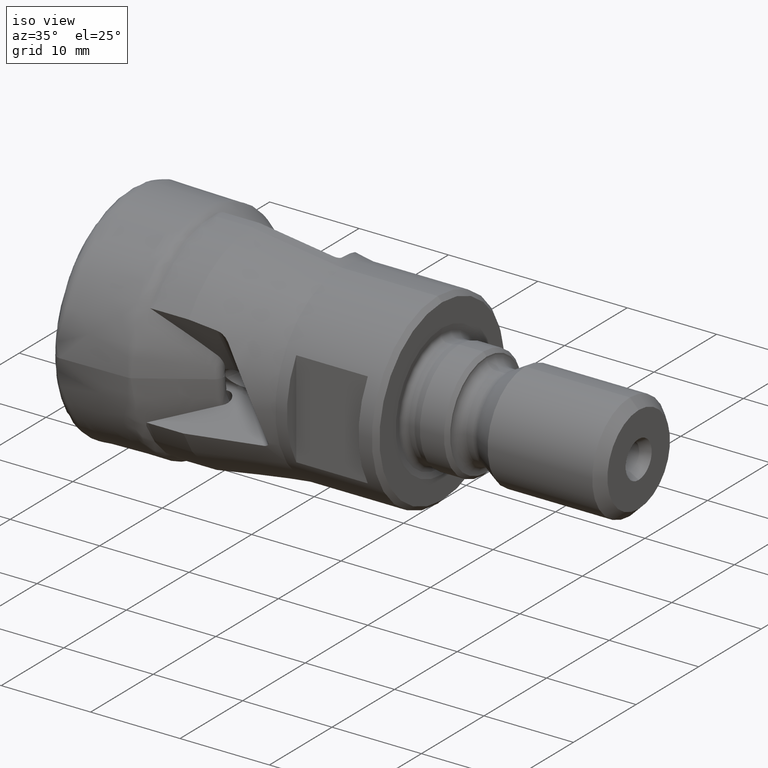
[diagram: clean part render]
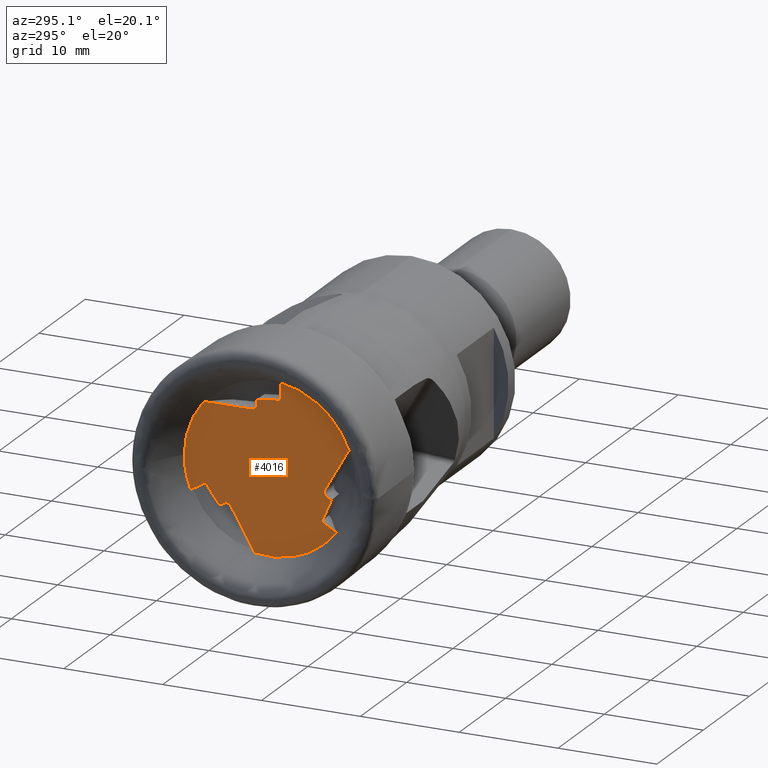
[diagram: tour spotlight — one face highlighted and labeled with its STEP entity id]
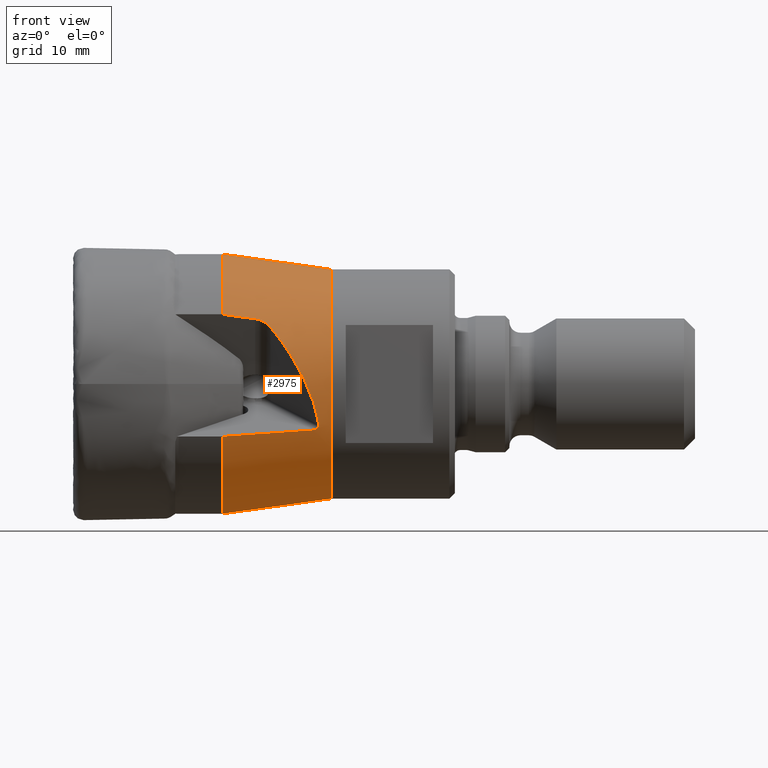
[diagram: tour spotlight — one face highlighted and labeled with its STEP entity id]
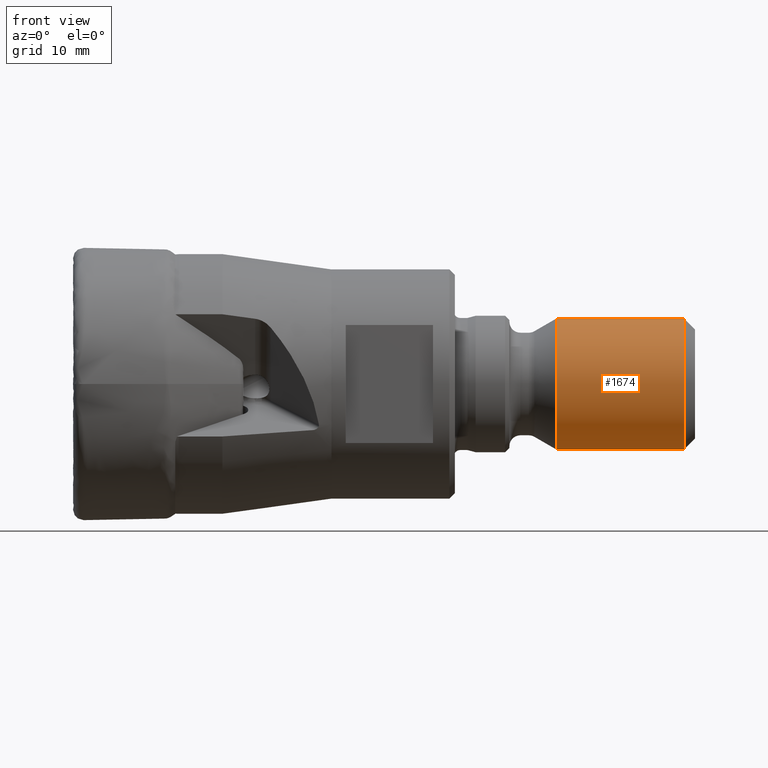
[diagram: tour spotlight — one face highlighted and labeled with its STEP entity id]
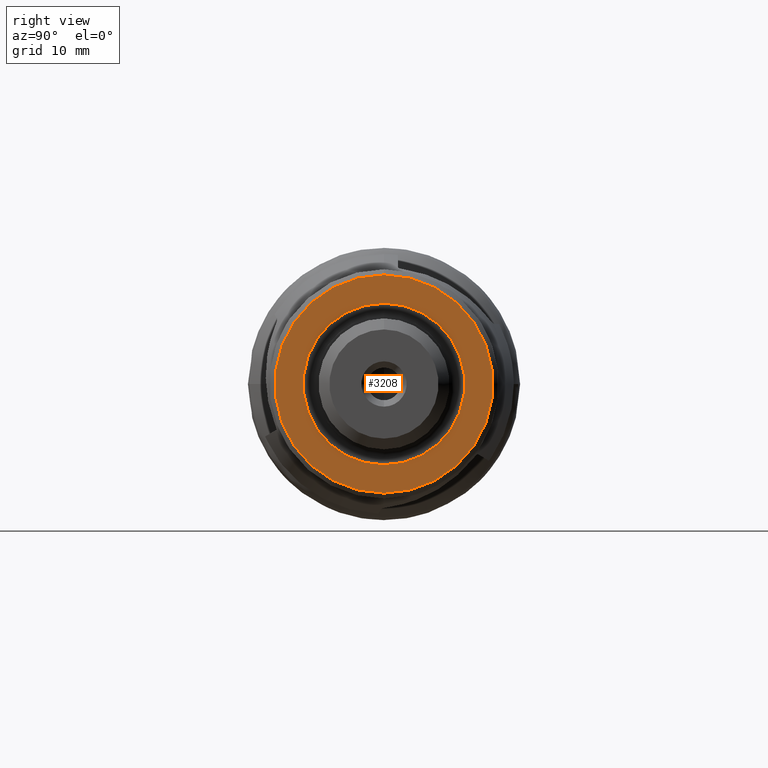
[diagram: tour spotlight — one face highlighted and labeled with its STEP entity id]
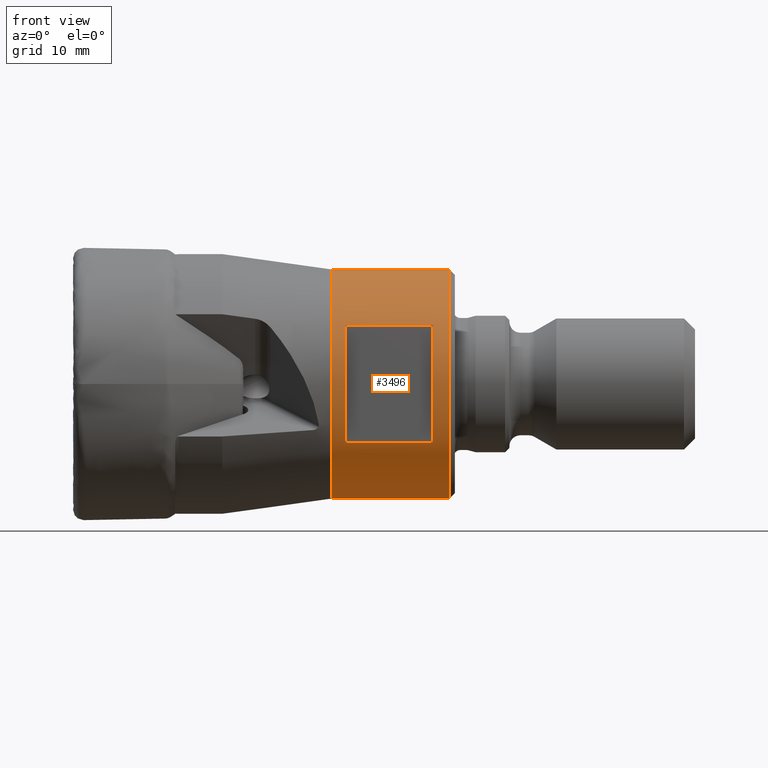
[diagram: tour spotlight — one face highlighted and labeled with its STEP entity id]
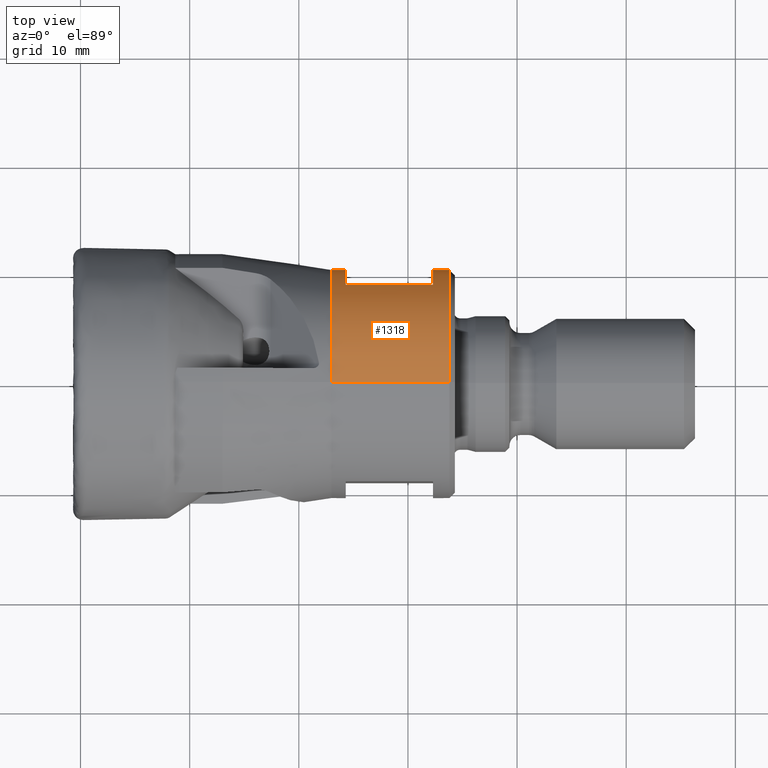
[diagram: tour spotlight — one face highlighted and labeled with its STEP entity id]
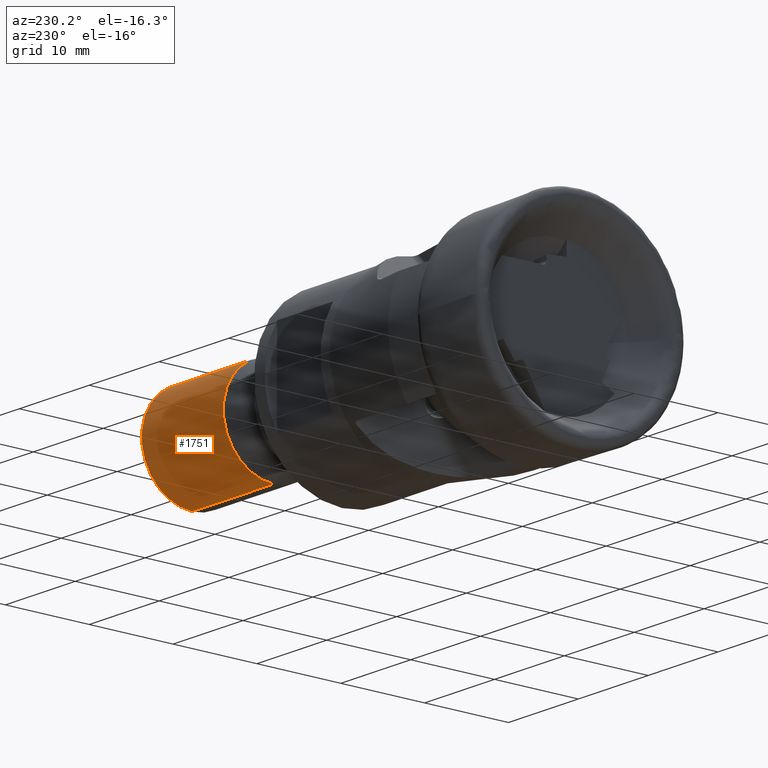
[diagram: tour spotlight — one face highlighted and labeled with its STEP entity id]
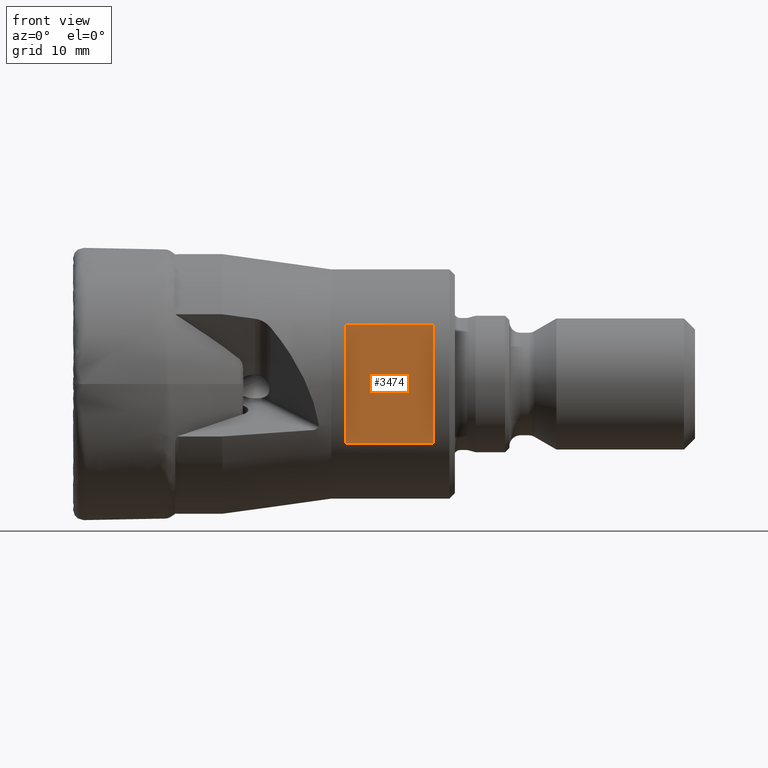
[diagram: tour spotlight — one face highlighted and labeled with its STEP entity id]
A machine part: a face-by-face anatomy tour. The part has 140 B-rep faces; the first image is the clean iso view, then the 8 largest visible faces are spotlighted one at a time (largest first), each with its STEP entity span.

Face 1 — auxiliary view, entity #4016. In plain terms, the highlighted planar face has unit normal (1, 0, 0).
Definition (entity closure, byte-faithful):
#15 = CARTESIAN_POINT ( 'NONE',  ( 2.999999999999999100, 0.0000000000000000000, 0.0000000000000000000 ) ) ;
#16 = CARTESIAN_POINT ( 'NONE',  ( 2.999999999999999100, 7.906625000000070200, 3.271627469146613200 ) ) ;
#51 = VECTOR ( 'NONE', #5285, 999.9999999999998900 ) ;
#122 = CARTESIAN_POINT ( 'NONE',  ( 2.999999999999997300, -6.292015533411229100, -2.154680172834768200 ) ) ;
#178 = VECTOR ( 'NONE', #284, 1000.000000000000000 ) ;
#197 = ORIENTED_EDGE ( 'NONE', *, *, #930, .T. ) ;
#230 = ORIENTED_EDGE ( 'NONE', *, *, #5463, .T. ) ;
#245 = LINE ( 'NONE', #1128, #3138 ) ;
#265 = LINE ( 'NONE', #4113, #1706 ) ;
#281 = CARTESIAN_POINT ( 'NONE',  ( 2.999999999999999100, 0.0000000000000000000, 0.0000000000000000000 ) ) ;
#284 = DIRECTION ( 'NONE',  ( -0.0000000000000000000, 0.8660254037844432600, 0.4999999999999919500 ) ) ;
#356 = CARTESIAN_POINT ( 'NONE',  ( 2.999999999999999100, 4.556152422706615500, -4.108512516844102800 ) ) ;
#416 = AXIS2_PLACEMENT_3D ( 'NONE', #281, #3370, #2029 ) ;
#417 = CARTESIAN_POINT ( 'NONE',  ( 2.999999999999999100, 9.795500000000000500, 6.759818246068590500 ) ) ;
#423 = VERTEX_POINT ( 'NONE', #4491 ) ;
#478 = CARTESIAN_POINT ( 'NONE',  ( 2.999999999999999100, 0.0000000000000000000, 0.0000000000000000000 ) ) ;
#500 = DIRECTION ( 'NONE',  ( 0.0000000000000000000, -0.5000000000000040000, -0.8660254037844363800 ) ) ;
#570 = AXIS2_PLACEMENT_3D ( 'NONE', #2195, #5281, #4405 ) ;
#610 = DIRECTION ( 'NONE',  ( 1.000000000000000000, 0.0000000000000000000, 0.0000000000000000000 ) ) ;
#641 = EDGE_CURVE ( 'NONE', #4559, #1741, #2387, .T. ) ;
#642 = CARTESIAN_POINT ( 'NONE',  ( 2.999999999999998200, -6.819930683116739400, -5.230753418736706600 ) ) ;
#748 = CARTESIAN_POINT ( 'NONE',  ( 2.999999999999997300, 5.012015533411188000, -4.371705206523013300 ) ) ;
#760 = DIRECTION ( 'NONE',  ( 0.0000000000000000000, -0.4999999999999920100, 0.8660254037844432600 ) ) ;
#768 = ORIENTED_EDGE ( 'NONE', *, *, #3234, .F. ) ;
#780 = CARTESIAN_POINT ( 'NONE',  ( 2.999999999999999100, -3.405299326061078000, -7.621485044419431500 ) ) ;
#804 = VERTEX_POINT ( 'NONE', #356 ) ;
#872 = FACE_OUTER_BOUND ( 'NONE', #2787, .T. ) ;
#873 = CARTESIAN_POINT ( 'NONE',  ( 3.000000000000000000, -1.119999999999999900, 6.759818246068589600 ) ) ;
#883 = ORIENTED_EDGE ( 'NONE', *, *, #1639, .T. ) ;
#889 = CARTESIAN_POINT ( 'NONE',  ( 2.999999999999999100, 0.0000000000000000000, 0.0000000000000000000 ) ) ;
#930 = EDGE_CURVE ( 'Kante59', #804, #3996, #4638, .T. ) ;
#958 = LINE ( 'NONE', #417, #4493 ) ;
#982 = CARTESIAN_POINT ( 'NONE',  ( 2.999999999999999100, 4.306152422706612800, -4.541525218736322400 ) ) ;
#1047 = DIRECTION ( 'NONE',  ( 0.0000000000000000000, -1.000000000000000000, 0.0000000000000000000 ) ) ;
#1051 = CARTESIAN_POINT ( 'NONE',  ( 2.999999999999999100, 8.846108497661029800, 0.7155275653171541100 ) ) ;
#1053 = DIRECTION ( 'NONE',  ( 0.0000000000000000000, 0.0000000000000000000, -1.000000000000000000 ) ) ;
#1055 = DIRECTION ( 'NONE',  ( -0.0000000000000000000, -0.9925371634694704100, 0.1219425238871892500 ) ) ;
#1065 = VERTEX_POINT ( 'NONE', #5651 ) ;
#1073 = LINE ( 'NONE', #2366, #5643 ) ;
#1084 = CARTESIAN_POINT ( 'NONE',  ( 2.999999999999999100, -1.119999999999999900, 8.521609932996399900 ) ) ;
#1105 = VERTEX_POINT ( 'NONE', #3316 ) ;
#1119 = DIRECTION ( 'NONE',  ( 0.0000000000000000000, -0.8660254037844363800, 0.5000000000000040000 ) ) ;
#1128 = CARTESIAN_POINT ( 'NONE',  ( 2.999999999999999100, -1.119999999999999400, -6.683595327574079400E-016 ) ) ;
#1251 = VERTEX_POINT ( 'NONE', #4972 ) ;
#1253 = VERTEX_POINT ( 'NONE', #1376 ) ;
#1274 = VERTEX_POINT ( 'NONE', #873 ) ;
#1296 = VERTEX_POINT ( 'NONE', #1324 ) ;
#1295 = VECTOR ( 'NONE', #4079, 1000.000000000000100 ) ;
#1324 = CARTESIAN_POINT ( 'NONE',  ( 2.999999999999999100, 1.460783143681050300, -8.469849376304177100 ) ) ;
#1326 = DIRECTION ( 'NONE',  ( -1.000000000000000000, -0.0000000000000000000, -0.0000000000000000000 ) ) ;
#1345 = LINE ( 'NONE', #5267, #51 ) ;
#1371 = VECTOR ( 'NONE', #1119, 1000.000000000000100 ) ;
#1376 = CARTESIAN_POINT ( 'NONE',  ( 2.999999999999998200, 6.414174326060956100, -2.409960670795753900 ) ) ;
#1385 = ORIENTED_EDGE ( 'NONE', *, *, #3888, .F. ) ;
#1423 = CARTESIAN_POINT ( 'NONE',  ( 2.999999999999999100, 7.939930683116673800, -3.290856514259665300 ) ) ;
#1469 = DIRECTION ( 'NONE',  ( -0.0000000000000000000, 0.3906632582468300700, -0.9205336597083076900 ) ) ;
#1513 = VERTEX_POINT ( 'NONE', #3446 ) ;
#1514 = VERTEX_POINT ( 'NONE', #3412 ) ;
#1570 = VECTOR ( 'NONE', #1660, 1000.000000000000000 ) ;
#1629 = VECTOR ( 'NONE', #3257, 1000.000000000000100 ) ;
#1639 = EDGE_CURVE ( 'NONE', #1251, #4168, #3456, .T. ) ;
#1653 = CIRCLE ( 'NONE', #570, 0.4999999999999995600 ) ;
#1660 = DIRECTION ( 'NONE',  ( 0.0000000000000000000, 0.8660254037844432600, 0.4999999999999920100 ) ) ;
#1706 = VECTOR ( 'NONE', #1047, 1000.000000000000000 ) ;
#1714 = ORIENTED_EDGE ( 'NONE', *, *, #5479, .T. ) ;
#1741 = VERTEX_POINT ( 'NONE', #1084 ) ;
#1760 = PLANE ( 'NONE',  #2612 ) ;
#1769 = DIRECTION ( 'NONE',  ( 0.0000000000000000000, 0.0000000000000000000, 1.000000000000000000 ) ) ;
#1823 = CARTESIAN_POINT ( 'NONE',  ( 3.000000000000000000, -5.294174326061006600, -4.349857575272817900 ) ) ;
#1865 = EDGE_CURVE ( 'NONE', #4130, #1253, #3176, .T. ) ;
#1894 = EDGE_CURVE ( 'NONE', #1274, #1065, #958, .T. ) ;
#1986 = ORIENTED_EDGE ( 'NONE', *, *, #3267, .F. ) ;
#2029 = DIRECTION ( 'NONE',  ( 0.0000000000000000000, 0.0000000000000000000, 1.000000000000000000 ) ) ;
#2124 = LINE ( 'NONE', #16, #1570 ) ;
#2139 = VERTEX_POINT ( 'NONE', #748 ) ;
#2177 = CARTESIAN_POINT ( 'NONE',  ( 2.999999999999999100, 1.279999999999999800, 0.0000000000000000000 ) ) ;
#2195 = CARTESIAN_POINT ( 'NONE',  ( 2.999999999999999100, 1.780000000000000000, 5.999999999999999100 ) ) ;
#2211 = EDGE_CURVE ( 'NONE', #4715, #3471, #1653, .T. ) ;
#2228 = EDGE_CURVE ( 'NONE', #1514, #4130, #2485, .T. ) ;
#2263 = EDGE_CURVE ( 'NONE', #5038, #4094, #2124, .T. ) ;
#2266 = AXIS2_PLACEMENT_3D ( 'NONE', #4076, #4098, #3221 ) ;
#2286 = VERTEX_POINT ( 'NONE', #122 ) ;
#2287 = ORIENTED_EDGE ( 'NONE', *, *, #5261, .T. ) ;
#2334 = ORIENTED_EDGE ( 'NONE', *, *, #2263, .T. ) ;
#2346 = EDGE_CURVE ( 'NONE', #4559, #4168, #5501, .T. ) ;
#2366 = CARTESIAN_POINT ( 'NONE',  ( 2.999999999999999100, 10.45877934475401000, 5.398686023909617900 ) ) ;
#2387 = CIRCLE ( 'NONE', #416, 8.594895918517158500 ) ;
#2402 = AXIS2_PLACEMENT_3D ( 'NONE', #889, #1326, #1769 ) ;
#2425 = DIRECTION ( 'NONE',  ( -0.0000000000000000000, 0.6018739052226356200, 0.7985911358211120700 ) ) ;
#2485 = CIRCLE ( 'NONE', #3950, 8.594895918517158500 ) ;
#2612 = AXIS2_PLACEMENT_3D ( 'NONE', #5308, #3956, #2667 ) ;
#2629 = ORIENTED_EDGE ( 'NONE', *, *, #641, .T. ) ;
#2667 = DIRECTION ( 'NONE',  ( 0.0000000000000000000, 0.0000000000000000000, -1.000000000000000000 ) ) ;
#2677 = DIRECTION ( 'NONE',  ( -1.000000000000000000, -0.0000000000000000000, -0.0000000000000000000 ) ) ;
#2707 = CARTESIAN_POINT ( 'NONE',  ( 2.999999999999999100, 1.780000000000000200, 5.500000000000000000 ) ) ;
#2726 = ORIENTED_EDGE ( 'NONE', *, *, #4671, .F. ) ;
#2730 = EDGE_CURVE ( 'NONE', #3401, #3471, #265, .T. ) ;
#2787 = EDGE_LOOP ( 'NONE', ( #4022, #2629, #4563, #4074, #1986, #230, #3392, #3323, #3105, #2991, #5052, #1714, #2726, #5305, #197, #1385, #3537, #2334, #2287, #768, #3259, #883 ) ) ;
#2815 = LINE ( 'NONE', #4121, #1629 ) ;
#2865 = VECTOR ( 'NONE', #500, 1000.000000000000100 ) ;
#2876 = CARTESIAN_POINT ( 'NONE',  ( 2.999999999999999100, 7.906624999999965400, -3.271627469146688700 ) ) ;
#2879 = CARTESIAN_POINT ( 'NONE',  ( 2.999999999999997800, 6.604713154266651300, 5.499999999999997300 ) ) ;
#2926 = CARTESIAN_POINT ( 'NONE',  ( 2.999999999999999100, 6.706625000000089500, 5.350088438229276400 ) ) ;
#2991 = ORIENTED_EDGE ( 'NONE', *, *, #2228, .T. ) ;
#3105 = ORIENTED_EDGE ( 'NONE', *, *, #5449, .T. ) ;
#3138 = VECTOR ( 'NONE', #5492, 1000.000000000000000 ) ;
#3141 = CARTESIAN_POINT ( 'NONE',  ( 2.999999999999996000, -8.065496297947710500, 2.969849376304248200 ) ) ;
#3176 = LINE ( 'NONE', #2876, #1371 ) ;
#3197 = CARTESIAN_POINT ( 'NONE',  ( 2.999999999999999100, -5.653139720814422700, -1.208474781263644300 ) ) ;
#3221 = DIRECTION ( 'NONE',  ( 0.0000000000000000000, 0.0000000000000000000, -1.000000000000000000 ) ) ;
#3234 = EDGE_CURVE ( 'NONE', #2286, #1105, #4614, .T. ) ;
#3257 = DIRECTION ( 'NONE',  ( 0.0000000000000000000, -0.8660254037844363800, 0.5000000000000040000 ) ) ;
#3259 = ORIENTED_EDGE ( 'NONE', *, *, #5113, .T. ) ;
#3267 = EDGE_CURVE ( 'NONE', #423, #1065, #1073, .T. ) ;
#3309 = AXIS2_PLACEMENT_3D ( 'NONE', #15, #4940, #3557 ) ;
#3316 = CARTESIAN_POINT ( 'NONE',  ( 3.000000000000002700, -5.544174326061003000, -3.916844873380596100 ) ) ;
#3323 = ORIENTED_EDGE ( 'NONE', *, *, #2730, .F. ) ;
#3370 = DIRECTION ( 'NONE',  ( -1.000000000000000000, -0.0000000000000000000, -0.0000000000000000000 ) ) ;
#3392 = ORIENTED_EDGE ( 'NONE', *, *, #2211, .T. ) ;
#3401 = VERTEX_POINT ( 'NONE', #2879 ) ;
#3412 = CARTESIAN_POINT ( 'NONE',  ( 2.999999999999999100, 8.594895918517158500, 1.052571177561669100E-015 ) ) ;
#3446 = CARTESIAN_POINT ( 'NONE',  ( 3.000000000000000900, 6.164174326060955200, -2.842973372687971800 ) ) ;
#3456 = CIRCLE ( 'NONE', #2266, 0.4999999999999997800 ) ;
#3471 = VERTEX_POINT ( 'NONE', #2707 ) ;
#3521 = DIRECTION ( 'NONE',  ( 0.0000000000000000000, 0.0000000000000000000, -1.000000000000000000 ) ) ;
#3537 = ORIENTED_EDGE ( 'NONE', *, *, #4512, .T. ) ;
#3549 = EDGE_CURVE ( 'NONE', #2139, #804, #2815, .T. ) ;
#3557 = DIRECTION ( 'NONE',  ( 0.0000000000000000000, 0.0000000000000000000, 1.000000000000000000 ) ) ;
#3597 = DIRECTION ( 'NONE',  ( 0.0000000000000000000, 0.0000000000000000000, 1.000000000000000000 ) ) ;
#3699 = LINE ( 'NONE', #780, #4598 ) ;
#3866 = VECTOR ( 'NONE', #1469, 1000.000000000000200 ) ;
#3888 = EDGE_CURVE ( 'NONE', #1296, #3996, #1345, .T. ) ;
#3950 = AXIS2_PLACEMENT_3D ( 'NONE', #478, #2677, #3597 ) ;
#3956 = DIRECTION ( 'NONE',  ( 1.000000000000000000, 0.0000000000000000000, 0.0000000000000000000 ) ) ;
#3959 = DIRECTION ( 'NONE',  ( 0.0000000000000000000, 1.000000000000000000, 6.123031769111887500E-017 ) ) ;
#3996 = VERTEX_POINT ( 'NONE', #4394 ) ;
#4016 = ADVANCED_FACE ( 'NONE', ( #872 ), #1760, .F. ) ;
#4022 = ORIENTED_EDGE ( 'NONE', *, *, #2346, .F. ) ;
#4043 = LINE ( 'NONE', #5357, #2865 ) ;
#4074 = ORIENTED_EDGE ( 'NONE', *, *, #1894, .T. ) ;
#4076 = CARTESIAN_POINT ( 'NONE',  ( 2.999999999999999100, -6.086152422706645000, -1.458474781263642500 ) ) ;
#4079 = DIRECTION ( 'NONE',  ( 0.0000000000000000000, 0.4999999999999920100, -0.8660254037844432600 ) ) ;
#4094 = VERTEX_POINT ( 'NONE', #1823 ) ;
#4098 = DIRECTION ( 'NONE',  ( 1.000000000000000000, 0.0000000000000000000, 0.0000000000000000000 ) ) ;
#4113 = CARTESIAN_POINT ( 'NONE',  ( 2.999999999999999100, 9.795500000000000500, 5.500000000000000000 ) ) ;
#4121 = CARTESIAN_POINT ( 'NONE',  ( 2.999999999999999100, 6.706624999999955400, -5.350088438229335000 ) ) ;
#4130 = VERTEX_POINT ( 'NONE', #1423 ) ;
#4165 = CARTESIAN_POINT ( 'NONE',  ( 2.999999999999999100, 1.279999999999999800, 5.999999999999999100 ) ) ;
#4168 = VERTEX_POINT ( 'NONE', #3197 ) ;
#4331 = LINE ( 'NONE', #1051, #5560 ) ;
#4394 = CARTESIAN_POINT ( 'NONE',  ( 2.999999999999999100, 3.873139720814392300, -4.291525218736321500 ) ) ;
#4405 = DIRECTION ( 'NONE',  ( 0.0000000000000000000, 0.0000000000000000000, -1.000000000000000000 ) ) ;
#4491 = CARTESIAN_POINT ( 'NONE',  ( 2.999999999999995600, 1.280000000000000000, 6.526385379357815700 ) ) ;
#4493 = VECTOR ( 'NONE', #3959, 1000.000000000000000 ) ;
#4512 = EDGE_CURVE ( 'NONE', #1296, #5038, #5710, .T. ) ;
#4559 = VERTEX_POINT ( 'NONE', #3141 ) ;
#4563 = ORIENTED_EDGE ( 'NONE', *, *, #5123, .T. ) ;
#4598 = VECTOR ( 'NONE', #760, 1000.000000000000100 ) ;
#4614 = LINE ( 'NONE', #5421, #3866 ) ;
#4638 = CIRCLE ( 'NONE', #4678, 0.4999999999999995600 ) ;
#4671 = EDGE_CURVE ( 'NONE', #2139, #1513, #4331, .T. ) ;
#4678 = AXIS2_PLACEMENT_3D ( 'NONE', #982, #610, #1053 ) ;
#4715 = VERTEX_POINT ( 'NONE', #4165 ) ;
#4748 = LINE ( 'NONE', #2177, #5277 ) ;
#4893 = CIRCLE ( 'NONE', #2402, 8.594895918517158500 ) ;
#4940 = DIRECTION ( 'NONE',  ( -1.000000000000000000, -0.0000000000000000000, -0.0000000000000000000 ) ) ;
#4958 = CARTESIAN_POINT ( 'NONE',  ( 2.999999999999999100, -2.314264720814514000, -6.991575921385144300 ) ) ;
#4972 = CARTESIAN_POINT ( 'NONE',  ( 2.999999999999999100, -5.836152422706649500, -1.891487483155865000 ) ) ;
#5038 = VERTEX_POINT ( 'NONE', #642 ) ;
#5052 = ORIENTED_EDGE ( 'NONE', *, *, #1865, .T. ) ;
#5113 = EDGE_CURVE ( 'NONE', #2286, #1251, #5139, .T. ) ;
#5123 = EDGE_CURVE ( 'NONE', #1741, #1274, #245, .T. ) ;
#5139 = LINE ( 'NONE', #2926, #178 ) ;
#5261 = EDGE_CURVE ( 'NONE', #4094, #1105, #3699, .T. ) ;
#5267 = CARTESIAN_POINT ( 'NONE',  ( 2.999999999999999100, 7.212014720814440100, 1.491575921385234600 ) ) ;
#5277 = VECTOR ( 'NONE', #3521, 1000.000000000000000 ) ;
#5281 = DIRECTION ( 'NONE',  ( 1.000000000000000000, 0.0000000000000000000, 0.0000000000000000000 ) ) ;
#5285 = DIRECTION ( 'NONE',  ( -0.0000000000000000000, 0.5000000000000040000, 0.8660254037844363800 ) ) ;
#5305 = ORIENTED_EDGE ( 'NONE', *, *, #3549, .T. ) ;
#5308 = CARTESIAN_POINT ( 'NONE',  ( 2.999999999999999100, 9.795500000000000500, 0.0000000000000000000 ) ) ;
#5357 = CARTESIAN_POINT ( 'NONE',  ( 2.999999999999999100, 8.303049326060993000, 0.8616667983509344000 ) ) ;
#5421 = CARTESIAN_POINT ( 'NONE',  ( 2.999999999999999100, -4.611637842415099400, -6.114213589226662500 ) ) ;
#5449 = EDGE_CURVE ( 'NONE', #3401, #1514, #4893, .T. ) ;
#5463 = EDGE_CURVE ( 'NONE', #423, #4715, #4748, .T. ) ;
#5479 = EDGE_CURVE ( 'NONE', #1253, #1513, #4043, .T. ) ;
#5492 = DIRECTION ( 'NONE',  ( 0.0000000000000000000, 6.123031769111886300E-017, -1.000000000000000000 ) ) ;
#5501 = LINE ( 'NONE', #4958, #1295 ) ;
#5560 = VECTOR ( 'NONE', #2425, 1000.000000000000000 ) ;
#5643 = VECTOR ( 'NONE', #1055, 1000.000000000000100 ) ;
#5651 = CARTESIAN_POINT ( 'NONE',  ( 3.000000000000000900, -0.6200000000000001100, 6.759818246068589600 ) ) ;
#5710 = CIRCLE ( 'NONE', #3309, 8.594895918517158500 ) ;

Face 2 — front view, entity #2975. In plain terms, the highlighted conical surface has half-angle 7.97 deg.
Definition (entity closure, byte-faithful):
#2 = CARTESIAN_POINT ( 'NONE',  ( 23.00000000000000000, 0.0000000000000000000, 0.0000000000000000000 ) ) ;
#18 = CARTESIAN_POINT ( 'NONE',  ( 21.84201529962991000, -9.942598227320829100, -3.850952949130635800 ) ) ;
#93 = EDGE_CURVE ( 'NONE', #397, #4808, #2243, .T. ) ;
#140 = ORIENTED_EDGE ( 'NONE', *, *, #3952, .T. ) ;
#220 = VECTOR ( 'NONE', #4353, 999.9999999999998900 ) ;
#286 = CARTESIAN_POINT ( 'NONE',  ( 16.57343753597356100, -0.1394879567131839200, -11.39895905564337900 ) ) ;
#336 = DIRECTION ( 'NONE',  ( 0.0000000000000000000, 0.0000000000000000000, 1.000000000000000000 ) ) ;
#351 = ORIENTED_EDGE ( 'NONE', *, *, #525, .F. ) ;
#358 = DIRECTION ( 'NONE',  ( -1.000000000000000000, -0.0000000000000000000, -0.0000000000000000000 ) ) ;
#373 = ORIENTED_EDGE ( 'NONE', *, *, #1523, .T. ) ;
#397 = VERTEX_POINT ( 'NONE', #2740 ) ;
#411 = CARTESIAN_POINT ( 'NONE',  ( 21.85160388620044000, -9.967747585247464000, -3.781708268237750700 ) ) ;
#413 = DIRECTION ( 'NONE',  ( -1.000000000000000000, -0.0000000000000000000, -0.0000000000000000000 ) ) ;
#495 = EDGE_CURVE ( 'NONE', #1231, #2771, #2001, .T. ) ;
#525 = EDGE_CURVE ( 'NONE', #5241, #1231, #4492, .T. ) ;
#550 = CIRCLE ( 'NONE', #2902, 10.50000000000000000 ) ;
#579 = CARTESIAN_POINT ( 'NONE',  ( 23.00000000000000000, 1.371604415045035500E-015, -10.50000000000000000 ) ) ;
#595 = CARTESIAN_POINT ( 'NONE',  ( 16.00000000000000000, -9.801502550146914000, 5.976700407370564100 ) ) ;
#646 = B_SPLINE_CURVE_WITH_KNOTS ( 'NONE', 3,
 ( #1965, #668, #1557, #3774, #1162, #5554, #5539, #1100, #4670, #4685 ),
 .UNSPECIFIED., .F., .F.,
 ( 4, 2, 2, 2, 4 ),
 ( 3.215277959116052800E-007, 0.0004188389655585371900, 0.0008373564033211628500, 0.001255873841083788400, 0.001674391278846414000 ),
 .UNSPECIFIED. ) ;
#668 = CARTESIAN_POINT ( 'NONE',  ( 17.32743019366539600, -9.980220984264191100, 5.288243677672420900 ) ) ;
#681 = ORIENTED_EDGE ( 'NONE', *, *, #829, .T. ) ;
#702 = CARTESIAN_POINT ( 'NONE',  ( 16.70623953186846200, -0.07725056629756198200, -11.38112646553848800 ) ) ;
#829 = EDGE_CURVE ( 'NONE', #3252, #5109, #550, .T. ) ;
#888 = CARTESIAN_POINT ( 'NONE',  ( 21.73888626645031900, -9.885776177551900200, -4.032655798229019900 ) ) ;
#932 = B_SPLINE_CURVE_WITH_KNOTS ( 'NONE', 3,
 ( #3110, #411, #18, #3074, #888, #1311, #2700, #3581 ),
 .UNSPECIFIED., .F., .F.,
 ( 4, 2, 2, 4 ),
 ( 3.878959614448864200E-018, 0.0002151240104736636300, 0.0004302480209473246000, 0.0008604960418946360700 ),
 .UNSPECIFIED. ) ;
#955 = ORIENTED_EDGE ( 'NONE', *, *, #2389, .F. ) ;
#1022 = CARTESIAN_POINT ( 'NONE',  ( 21.84104997162514300, -9.994198445801847800, -3.714786204703060900 ) ) ;
#1100 = CARTESIAN_POINT ( 'NONE',  ( 16.27853052520752500, -9.788145116688912900, 5.923730016912862200 ) ) ;
#1103 = CARTESIAN_POINT ( 'NONE',  ( 23.00000000000000000, 0.0000000000000000000, 10.50000000000000000 ) ) ;
#1162 = CARTESIAN_POINT ( 'NONE',  ( 16.90978006232758800, -9.853535364215543900, 5.638696288799330600 ) ) ;
#1165 = ORIENTED_EDGE ( 'NONE', *, *, #3917, .T. ) ;
#1170 = VERTEX_POINT ( 'NONE', #4785 ) ;
#1231 = VERTEX_POINT ( 'NONE', #2133 ) ;
#1311 = CARTESIAN_POINT ( 'NONE',  ( 21.57187055451749200, -9.855717233622669900, -4.166732752413113700 ) ) ;
#1477 = CARTESIAN_POINT ( 'NONE',  ( 16.00000000000000000, -0.2752231085182037500, -11.47670040737047600 ) ) ;
#1523 = EDGE_CURVE ( 'NONE', #5109, #2771, #2846, .T. ) ;
#1557 = CARTESIAN_POINT ( 'NONE',  ( 17.23219511687692700, -9.943855797386822500, 5.384008907652726000 ) ) ;
#1562 = CARTESIAN_POINT ( 'NONE',  ( 21.84104997162514300, -9.994198445801847800, -3.714786204703060900 ) ) ;
#1581 = EDGE_CURVE ( 'NONE', #2057, #5241, #646, .T. ) ;
#1602 = ORIENTED_EDGE ( 'NONE', *, *, #1846, .F. ) ;
#1665 = ORIENTED_EDGE ( 'NONE', *, *, #2026, .F. ) ;
#1700 = AXIS2_PLACEMENT_3D ( 'NONE', #3585, #3135, #2253 ) ;
#1735 = ORIENTED_EDGE ( 'NONE', *, *, #1581, .F. ) ;
#1739 = CARTESIAN_POINT ( 'NONE',  ( 12.99999999999999800, 0.0000000000000000000, 0.0000000000000000000 ) ) ;
#1846 = EDGE_CURVE ( 'NONE', #5130, #2057, #4337, .T. ) ;
#1942 = CARTESIAN_POINT ( 'NONE',  ( 21.38637664290413200, -11.13372830744675600, -0.8317159301500781600 ) ) ;
#1965 = CARTESIAN_POINT ( 'NONE',  ( 17.41421356237308500, -10.02036553422916400, 5.184209340443356200 ) ) ;
#2001 = CIRCLE ( 'NONE', #1700, 11.90000000000000000 ) ;
#2002 = VERTEX_POINT ( 'NONE', #4780 ) ;
#2026 = EDGE_CURVE ( 'NONE', #2002, #2929, #2698, .T. ) ;
#2057 = VERTEX_POINT ( 'NONE', #4792 ) ;
#2133 = CARTESIAN_POINT ( 'NONE',  ( 12.99999999999999800, -10.03950210412351900, 6.388927727036786100 ) ) ;
#2216 = DIRECTION ( 'NONE',  ( 0.0000000000000000000, 0.0000000000000000000, 1.000000000000000000 ) ) ;
#2243 = B_SPLINE_CURVE_WITH_KNOTS ( 'NONE', 3,
 ( #5100, #702, #286, #4258, #2459, #5495 ),
 .UNSPECIFIED., .F., .F.,
 ( 4, 2, 4 ),
 ( 0.0007863599523914887400, 0.001230375615618952600, 0.001674391278846416800 ),
 .UNSPECIFIED. ) ;
#2253 = DIRECTION ( 'NONE',  ( 0.0000000000000000000, 0.0000000000000000000, 1.000000000000000000 ) ) ;
#2364 = CARTESIAN_POINT ( 'NONE',  ( 17.41421356237308500, -10.02036553422916400, 5.184209340443356200 ) ) ;
#2389 = EDGE_CURVE ( 'NONE', #4808, #2002, #3131, .T. ) ;
#2459 = CARTESIAN_POINT ( 'NONE',  ( 16.14846254741861400, -0.2633834983961376700, -11.45619360109725300 ) ) ;
#2620 = CARTESIAN_POINT ( 'NONE',  ( 21.28488839681745400, -9.874920829105434400, -4.223271509784709100 ) ) ;
#2653 = CARTESIAN_POINT ( 'NONE',  ( 16.00000000000000000, -0.2752231085182037500, -11.47670040737047600 ) ) ;
#2665 = CARTESIAN_POINT ( 'NONE',  ( 15.76166345964789200, -10.54912352693657200, -4.612522618865880600 ) ) ;
#2698 = CIRCLE ( 'NONE', #5151, 11.90000000000000000 ) ;
#2700 = CARTESIAN_POINT ( 'NONE',  ( 21.42824406282153400, -9.857415110543733800, -4.213164578461411100 ) ) ;
#2740 = CARTESIAN_POINT ( 'NONE',  ( 16.83292696858664400, 2.081499189159016400E-015, -11.36339022439787200 ) ) ;
#2771 = VERTEX_POINT ( 'NONE', #4193 ) ;
#2779 = ORIENTED_EDGE ( 'NONE', *, *, #3350, .F. ) ;
#2846 = LINE ( 'NONE', #5683, #220 ) ;
#2902 = AXIS2_PLACEMENT_3D ( 'NONE', #3109, #3559, #2216 ) ;
#2918 = EDGE_LOOP ( 'NONE', ( #2779, #681, #373, #5674, #351, #1735, #1602, #1165, #140, #1665, #955, #3615 ) ) ;
#2929 = VERTEX_POINT ( 'NONE', #3846 ) ;
#2975 = ADVANCED_FACE ( 'NONE', ( #3929 ), #5649, .T. ) ;
#3074 = CARTESIAN_POINT ( 'NONE',  ( 21.78553834136061000, -9.901602814673690700, -3.976434113594463000 ) ) ;
#3090 = CARTESIAN_POINT ( 'NONE',  ( 12.99999999999999800, -10.88591137966754700, -4.806967176299899300 ) ) ;
#3109 = CARTESIAN_POINT ( 'NONE',  ( 23.00000000000000000, 0.0000000000000000000, 0.0000000000000000000 ) ) ;
#3110 = CARTESIAN_POINT ( 'NONE',  ( 21.84104997162514300, -9.994198445801847800, -3.714786204703060900 ) ) ;
#3131 = B_SPLINE_CURVE_WITH_KNOTS ( 'NONE', 3,
 ( #1477, #3749, #4203, #5467 ),
 .UNSPECIFIED., .F., .F.,
 ( 4, 4 ),
 ( 2.025278649261428700E-007, 0.003037730330333946200 ),
 .UNSPECIFIED. ) ;
#3135 = DIRECTION ( 'NONE',  ( -1.000000000000000000, -0.0000000000000000000, -0.0000000000000000000 ) ) ;
#3252 = VERTEX_POINT ( 'NONE', #579 ) ;
#3350 = EDGE_CURVE ( 'NONE', #3252, #397, #4266, .T. ) ;
#3501 = CARTESIAN_POINT ( 'NONE',  ( 18.52329667044007900, -10.21214954765702000, -4.417970601218936400 ) ) ;
#3559 = DIRECTION ( 'NONE',  ( -1.000000000000000000, -0.0000000000000000000, -0.0000000000000000000 ) ) ;
#3581 = CARTESIAN_POINT ( 'NONE',  ( 21.28488839681745400, -9.874920829105434400, -4.223271509784709100 ) ) ;
#3585 = CARTESIAN_POINT ( 'NONE',  ( 12.99999999999999800, 0.0000000000000000000, 0.0000000000000000000 ) ) ;
#3615 = ORIENTED_EDGE ( 'NONE', *, *, #93, .F. ) ;
#3697 = CARTESIAN_POINT ( 'NONE',  ( 15.00012875238117300, -9.881240409626650800, 6.114810431276259500 ) ) ;
#3749 = CARTESIAN_POINT ( 'NONE',  ( 15.00012875238117100, -0.3549609679979393600, -11.61481043127616400 ) ) ;
#3774 = CARTESIAN_POINT ( 'NONE',  ( 17.02406694544420400, -9.880629556184326000, 5.558847255263469100 ) ) ;
#3846 = CARTESIAN_POINT ( 'NONE',  ( 12.99999999999999800, -10.88591137966754700, -4.806967176299899300 ) ) ;
#3863 = CARTESIAN_POINT ( 'NONE',  ( 16.00000000000000000, -9.801502550146914000, 5.976700407370564100 ) ) ;
#3917 = EDGE_CURVE ( 'NONE', #5130, #1170, #932, .T. ) ;
#3929 = FACE_OUTER_BOUND ( 'NONE', #2918, .T. ) ;
#3952 = EDGE_CURVE ( 'NONE', #1170, #2929, #4192, .T. ) ;
#4170 = CARTESIAN_POINT ( 'NONE',  ( 23.00000000000000000, 1.285879139104720800E-015, -10.50000000000000000 ) ) ;
#4192 = B_SPLINE_CURVE_WITH_KNOTS ( 'NONE', 3,
 ( #2620, #3501, #2665, #3090 ),
 .UNSPECIFIED., .F., .F.,
 ( 4, 4 ),
 ( 0.001732285492673327600, 0.01009901593189700200 ),
 .UNSPECIFIED. ) ;
#4193 = CARTESIAN_POINT ( 'NONE',  ( 12.99999999999999800, 0.0000000000000000000, 11.90000000000000000 ) ) ;
#4203 = CARTESIAN_POINT ( 'NONE',  ( 14.00012236395733600, -0.4342760446684992800, -11.75218817387579600 ) ) ;
#4258 = CARTESIAN_POINT ( 'NONE',  ( 16.29525917352610900, -0.2325650474815874300, -11.43639270389628300 ) ) ;
#4266 = LINE ( 'NONE', #4170, #4760 ) ;
#4337 =( BOUNDED_CURVE ( )  B_SPLINE_CURVE ( 3, ( #1022, #1942, #4583, #2364 ),
 .UNSPECIFIED., .F., .F. ) 
 B_SPLINE_CURVE_WITH_KNOTS ( ( 4, 4 ),
 ( 3.287358571121612900, 4.028622739916535500 ),
 .UNSPECIFIED. ) 
 CURVE ( )  GEOMETRIC_REPRESENTATION_ITEM ( )  RATIONAL_B_SPLINE_CURVE ( ( 1.000000000000000000, 0.9547323919347618900, 0.9547323919347618900, 1.000000000000000000 ) ) 
 REPRESENTATION_ITEM ( '' )  );
#4353 = DIRECTION ( 'NONE',  ( -0.9903417466743302800, 0.0000000000000000000, 0.1386478445344062600 ) ) ;
#4358 = DIRECTION ( 'NONE',  ( 0.0000000000000000000, 0.0000000000000000000, 1.000000000000000000 ) ) ;
#4492 = B_SPLINE_CURVE_WITH_KNOTS ( 'NONE', 3,
 ( #595, #3697, #5470, #4588 ),
 .UNSPECIFIED., .F., .F.,
 ( 4, 4 ),
 ( 2.025278649227757300E-007, 0.003037730330333944400 ),
 .UNSPECIFIED. ) ;
#4583 = CARTESIAN_POINT ( 'NONE',  ( 19.84079994635251900, -11.14286423169400200, 2.275261347923494000 ) ) ;
#4588 = CARTESIAN_POINT ( 'NONE',  ( 12.99999999999999800, -10.03950210412351900, 6.388927727036786100 ) ) ;
#4670 = CARTESIAN_POINT ( 'NONE',  ( 16.13993687632033400, -9.790342846328416100, 5.957371233359499900 ) ) ;
#4685 = CARTESIAN_POINT ( 'NONE',  ( 16.00000000000000000, -9.801502550146914000, 5.976700407370564100 ) ) ;
#4760 = VECTOR ( 'NONE', #5552, 999.9999999999998900 ) ;
#4780 = CARTESIAN_POINT ( 'NONE',  ( 12.99999999999999800, -0.5132226624948105200, -11.88892772703668800 ) ) ;
#4785 = CARTESIAN_POINT ( 'NONE',  ( 21.28488839681745400, -9.874920829105434400, -4.223271509784709100 ) ) ;
#4792 = CARTESIAN_POINT ( 'NONE',  ( 17.41421356237308500, -10.02036553422916400, 5.184209340443356200 ) ) ;
#4808 = VERTEX_POINT ( 'NONE', #2653 ) ;
#5100 = CARTESIAN_POINT ( 'NONE',  ( 16.83292696858664400, 2.081499189159016400E-015, -11.36339022439787200 ) ) ;
#5109 = VERTEX_POINT ( 'NONE', #1103 ) ;
#5130 = VERTEX_POINT ( 'NONE', #1562 ) ;
#5151 = AXIS2_PLACEMENT_3D ( 'NONE', #1739, #358, #336 ) ;
#5241 = VERTEX_POINT ( 'NONE', #3863 ) ;
#5381 = AXIS2_PLACEMENT_3D ( 'NONE', #2, #413, #4358 ) ;
#5467 = CARTESIAN_POINT ( 'NONE',  ( 12.99999999999999800, -0.5132226624948105200, -11.88892772703668800 ) ) ;
#5470 = CARTESIAN_POINT ( 'NONE',  ( 14.00012236395734000, -9.960555486297209900, 6.252188173875890900 ) ) ;
#5495 = CARTESIAN_POINT ( 'NONE',  ( 16.00000000000000000, -0.2752231085182037500, -11.47670040737047600 ) ) ;
#5539 = CARTESIAN_POINT ( 'NONE',  ( 16.54211569687126000, -9.799563061242805500, 5.833000724412905800 ) ) ;
#5552 = DIRECTION ( 'NONE',  ( -0.9903417466743302800, 1.697946390177404500E-017, -0.1386478445344062600 ) ) ;
#5554 = CARTESIAN_POINT ( 'NONE',  ( 16.66828255554782600, -9.813009445153779700, 5.775872289256501100 ) ) ;
#5649 = CONICAL_SURFACE ( 'NONE', #5381, 10.50000000000000000, 0.1390959414820713300 ) ;
#5674 = ORIENTED_EDGE ( 'NONE', *, *, #495, .F. ) ;
#5683 = CARTESIAN_POINT ( 'NONE',  ( 23.00000000000000000, 0.0000000000000000000, 10.50000000000000000 ) ) ;

Face 3 — front view, entity #1674. In plain terms, the highlighted cylindrical surface (partial cylindrical patch) has radius 6 mm, axis along (-1, -0, -0).
Definition (entity closure, byte-faithful):
#244 = EDGE_CURVE ( 'NONE', #3245, #4791, #949, .T. ) ;
#545 = DIRECTION ( 'NONE',  ( -1.000000000000000000, -0.0000000000000000000, -0.0000000000000000000 ) ) ;
#716 = AXIS2_PLACEMENT_3D ( 'NONE', #1437, #1378, #2818 ) ;
#949 = CIRCLE ( 'NONE', #1118, 6.000000000000040000 ) ;
#974 = CARTESIAN_POINT ( 'NONE',  ( 43.60000000000001600, 7.347880794884167100E-016, -6.000000000000038200 ) ) ;
#998 = CARTESIAN_POINT ( 'NONE',  ( 0.0000000000000000000, 7.347880794884167100E-016, -6.000000000000039100 ) ) ;
#1039 = DIRECTION ( 'NONE',  ( -1.000000000000000000, -0.0000000000000000000, -0.0000000000000000000 ) ) ;
#1118 = AXIS2_PLACEMENT_3D ( 'NONE', #4434, #4395, #2650 ) ;
#1239 = FACE_OUTER_BOUND ( 'NONE', #2586, .T. ) ;
#1335 = VECTOR ( 'NONE', #545, 1000.000000000000000 ) ;
#1362 = ORIENTED_EDGE ( 'NONE', *, *, #2267, .F. ) ;
#1378 = DIRECTION ( 'NONE',  ( -1.000000000000000000, -0.0000000000000000000, -0.0000000000000000000 ) ) ;
#1437 = CARTESIAN_POINT ( 'NONE',  ( 0.0000000000000000000, 0.0000000000000000000, 0.0000000000000000000 ) ) ;
#1439 = CARTESIAN_POINT ( 'NONE',  ( 43.60000000000001600, 0.0000000000000000000, 0.0000000000000000000 ) ) ;
#1674 = ADVANCED_FACE ( 'Fl�che11', ( #1239 ), #3600, .T. ) ;
#1804 = ORIENTED_EDGE ( 'NONE', *, *, #244, .T. ) ;
#1937 = AXIS2_PLACEMENT_3D ( 'NONE', #1439, #4976, #5376 ) ;
#2060 = VECTOR ( 'NONE', #1039, 1000.000000000000000 ) ;
#2258 = EDGE_CURVE ( 'NONE', #2717, #4626, #2761, .T. ) ;
#2267 = EDGE_CURVE ( 'NONE', #3245, #2717, #2477, .T. ) ;
#2477 = LINE ( 'NONE', #998, #2060 ) ;
#2586 = EDGE_LOOP ( 'NONE', ( #1362, #1804, #3739, #3686 ) ) ;
#2650 = DIRECTION ( 'NONE',  ( 0.0000000000000000000, 0.0000000000000000000, 1.000000000000000000 ) ) ;
#2717 = VERTEX_POINT ( 'NONE', #974 ) ;
#2761 = CIRCLE ( 'NONE', #1937, 6.000000000000038200 ) ;
#2801 = CARTESIAN_POINT ( 'NONE',  ( 43.60000000000001600, 0.0000000000000000000, 6.000000000000038200 ) ) ;
#2818 = DIRECTION ( 'NONE',  ( 0.0000000000000000000, 0.0000000000000000000, 1.000000000000000000 ) ) ;
#3245 = VERTEX_POINT ( 'NONE', #4109 ) ;
#3495 = LINE ( 'NONE', #5426, #1335 ) ;
#3600 = CYLINDRICAL_SURFACE ( 'NONE', #716, 6.000000000000039100 ) ;
#3686 = ORIENTED_EDGE ( 'NONE', *, *, #2258, .F. ) ;
#3739 = ORIENTED_EDGE ( 'NONE', *, *, #4953, .T. ) ;
#4109 = CARTESIAN_POINT ( 'NONE',  ( 55.29999999999994000, 7.347880794884167100E-016, -6.000000000000040000 ) ) ;
#4395 = DIRECTION ( 'NONE',  ( -1.000000000000000000, -0.0000000000000000000, -0.0000000000000000000 ) ) ;
#4434 = CARTESIAN_POINT ( 'NONE',  ( 55.29999999999994000, 0.0000000000000000000, 0.0000000000000000000 ) ) ;
#4626 = VERTEX_POINT ( 'NONE', #2801 ) ;
#4662 = CARTESIAN_POINT ( 'NONE',  ( 55.29999999999994000, 0.0000000000000000000, 6.000000000000040000 ) ) ;
#4791 = VERTEX_POINT ( 'NONE', #4662 ) ;
#4953 = EDGE_CURVE ( 'NONE', #4791, #4626, #3495, .T. ) ;
#4976 = DIRECTION ( 'NONE',  ( -1.000000000000000000, -0.0000000000000000000, -0.0000000000000000000 ) ) ;
#5376 = DIRECTION ( 'NONE',  ( 0.0000000000000000000, 0.0000000000000000000, 1.000000000000000000 ) ) ;
#5426 = CARTESIAN_POINT ( 'NONE',  ( 0.0000000000000000000, 0.0000000000000000000, 6.000000000000039100 ) ) ;

Face 4 — right view, entity #3208. In plain terms, the highlighted planar face has unit normal (-1, 0, -0).
Definition (entity closure, byte-faithful):
#150 = DIRECTION ( 'NONE',  ( -1.000000000000000000, 0.0000000000000000000, -0.0000000000000000000 ) ) ;
#517 = CARTESIAN_POINT ( 'NONE',  ( 34.29999999784337200, 0.0000000000000000000, 0.0000000000000000000 ) ) ;
#540 = DIRECTION ( 'NONE',  ( -1.000000000000000000, -0.0000000000000000000, -0.0000000000000000000 ) ) ;
#597 = CARTESIAN_POINT ( 'NONE',  ( 34.29999999784337200, 9.066664077560313700E-016, 7.403493059282789400 ) ) ;
#778 = ORIENTED_EDGE ( 'NONE', *, *, #4120, .F. ) ;
#869 = DIRECTION ( 'NONE',  ( 0.0000000000000000000, 0.0000000000000000000, 1.000000000000000000 ) ) ;
#940 = FACE_BOUND ( 'NONE', #3644, .T. ) ;
#953 = VERTEX_POINT ( 'NONE', #5379 ) ;
#1234 = AXIS2_PLACEMENT_3D ( 'NONE', #517, #540, #3622 ) ;
#1278 = CIRCLE ( 'NONE', #1234, 10.00000000000000000 ) ;
#1506 = DIRECTION ( 'NONE',  ( -1.000000000000000000, -0.0000000000000000000, -0.0000000000000000000 ) ) ;
#1517 = CARTESIAN_POINT ( 'NONE',  ( 34.29999999784337200, 1.255262969126037000E-015, -10.00000000000000000 ) ) ;
#1869 = CARTESIAN_POINT ( 'NONE',  ( 34.29999999784337200, 0.0000000000000000000, 0.0000000000000000000 ) ) ;
#1881 = CARTESIAN_POINT ( 'NONE',  ( 34.29999999784337200, 7.403493059282789400, 0.0000000000000000000 ) ) ;
#1898 = AXIS2_PLACEMENT_3D ( 'NONE', #1881, #150, #1960 ) ;
#1960 = DIRECTION ( 'NONE',  ( -0.0000000000000000000, 0.0000000000000000000, 1.000000000000000000 ) ) ;
#2186 = FACE_OUTER_BOUND ( 'NONE', #2394, .T. ) ;
#2315 = DIRECTION ( 'NONE',  ( 0.0000000000000000000, 0.0000000000000000000, 1.000000000000000000 ) ) ;
#2394 = EDGE_LOOP ( 'NONE', ( #778, #4921 ) ) ;
#2783 = DIRECTION ( 'NONE',  ( 0.0000000000000000000, 0.0000000000000000000, 1.000000000000000000 ) ) ;
#3208 = ADVANCED_FACE ( 'NONE', ( #2186, #940 ), #5469, .F. ) ;
#3222 = CIRCLE ( 'NONE', #4606, 7.403493059282789400 ) ;
#3230 = DIRECTION ( 'NONE',  ( -1.000000000000000000, -0.0000000000000000000, -0.0000000000000000000 ) ) ;
#3437 = CIRCLE ( 'NONE', #4424, 10.00000000000000000 ) ;
#3546 = DIRECTION ( 'NONE',  ( -1.000000000000000000, -0.0000000000000000000, -0.0000000000000000000 ) ) ;
#3550 = VERTEX_POINT ( 'NONE', #597 ) ;
#3622 = DIRECTION ( 'NONE',  ( 0.0000000000000000000, 0.0000000000000000000, 1.000000000000000000 ) ) ;
#3644 = EDGE_LOOP ( 'NONE', ( #4561, #4345 ) ) ;
#3912 = EDGE_CURVE ( 'Kante85', #4275, #953, #3437, .T. ) ;
#4120 = EDGE_CURVE ( 'Kante85', #953, #4275, #1278, .T. ) ;
#4156 = EDGE_CURVE ( 'NONE', #3550, #4447, #3222, .T. ) ;
#4275 = VERTEX_POINT ( 'NONE', #1517 ) ;
#4314 = CARTESIAN_POINT ( 'NONE',  ( 34.29999999784337200, 0.0000000000000000000, -7.403493059282789400 ) ) ;
#4345 = ORIENTED_EDGE ( 'NONE', *, *, #4156, .T. ) ;
#4424 = AXIS2_PLACEMENT_3D ( 'NONE', #4448, #3546, #869 ) ;
#4447 = VERTEX_POINT ( 'NONE', #4314 ) ;
#4448 = CARTESIAN_POINT ( 'NONE',  ( 34.29999999784337200, 0.0000000000000000000, 0.0000000000000000000 ) ) ;
#4561 = ORIENTED_EDGE ( 'NONE', *, *, #4961, .T. ) ;
#4606 = AXIS2_PLACEMENT_3D ( 'NONE', #1869, #3230, #2315 ) ;
#4917 = AXIS2_PLACEMENT_3D ( 'NONE', #5476, #1506, #2783 ) ;
#4921 = ORIENTED_EDGE ( 'NONE', *, *, #3912, .F. ) ;
#4961 = EDGE_CURVE ( 'NONE', #4447, #3550, #5068, .T. ) ;
#5068 = CIRCLE ( 'NONE', #4917, 7.403493059282789400 ) ;
#5379 = CARTESIAN_POINT ( 'NONE',  ( 34.29999999784337200, 0.0000000000000000000, 10.00000000000000000 ) ) ;
#5469 = PLANE ( 'NONE',  #1898 ) ;
#5476 = CARTESIAN_POINT ( 'NONE',  ( 34.29999999784337200, 0.0000000000000000000, 0.0000000000000000000 ) ) ;

Face 5 — front view, entity #3496. In plain terms, the highlighted cylindrical surface (partial cylindrical patch) has radius 10.5 mm, axis along (-1, -0, -0).
Definition (entity closure, byte-faithful):
#145 = VECTOR ( 'NONE', #2843, 1000.000000000000000 ) ;
#181 = DIRECTION ( 'NONE',  ( -1.000000000000000000, -0.0000000000000000000, -0.0000000000000000000 ) ) ;
#212 = EDGE_CURVE ( 'NONE', #4574, #5302, #1498, .T. ) ;
#226 = ORIENTED_EDGE ( 'NONE', *, *, #212, .T. ) ;
#335 = DIRECTION ( 'NONE',  ( -1.000000000000000000, -0.0000000000000000000, -0.0000000000000000000 ) ) ;
#401 = CIRCLE ( 'NONE', #3319, 10.50000000000000000 ) ;
#433 = VERTEX_POINT ( 'NONE', #518 ) ;
#518 = CARTESIAN_POINT ( 'NONE',  ( 32.29999999784337200, -9.000000000000001800, -5.408326913195982600 ) ) ;
#550 = CIRCLE ( 'NONE', #2902, 10.50000000000000000 ) ;
#579 = CARTESIAN_POINT ( 'NONE',  ( 23.00000000000000000, 1.371604415045035500E-015, -10.50000000000000000 ) ) ;
#602 = VECTOR ( 'NONE', #5500, 1000.000000000000000 ) ;
#632 = VERTEX_POINT ( 'NONE', #4188 ) ;
#829 = EDGE_CURVE ( 'NONE', #3252, #5109, #550, .T. ) ;
#887 = ORIENTED_EDGE ( 'NONE', *, *, #4243, .T. ) ;
#981 = EDGE_LOOP ( 'NONE', ( #5498, #1505, #1184, #2126 ) ) ;
#1103 = CARTESIAN_POINT ( 'NONE',  ( 23.00000000000000000, 0.0000000000000000000, 10.50000000000000000 ) ) ;
#1184 = ORIENTED_EDGE ( 'NONE', *, *, #2112, .T. ) ;
#1238 = ORIENTED_EDGE ( 'NONE', *, *, #2377, .T. ) ;
#1275 = CARTESIAN_POINT ( 'NONE',  ( 24.29999999784337900, 0.0000000000000000000, 0.0000000000000000000 ) ) ;
#1498 = CIRCLE ( 'NONE', #3831, 10.50000000000000000 ) ;
#1505 = ORIENTED_EDGE ( 'NONE', *, *, #4294, .T. ) ;
#1624 = VECTOR ( 'NONE', #181, 1000.000000000000000 ) ;
#1742 = CARTESIAN_POINT ( 'NONE',  ( 32.29999999784337200, -9.000000000000001800, 5.408326913195982600 ) ) ;
#1758 = CARTESIAN_POINT ( 'NONE',  ( 32.29999999784337200, 0.0000000000000000000, 0.0000000000000000000 ) ) ;
#1901 = CARTESIAN_POINT ( 'NONE',  ( 0.0000000000000000000, 0.0000000000000000000, 10.50000000000000000 ) ) ;
#2111 = FACE_OUTER_BOUND ( 'NONE', #981, .T. ) ;
#2112 = EDGE_CURVE ( 'NONE', #3823, #5109, #2554, .T. ) ;
#2126 = ORIENTED_EDGE ( 'NONE', *, *, #829, .F. ) ;
#2166 = DIRECTION ( 'NONE',  ( 0.0000000000000000000, 0.0000000000000000000, 1.000000000000000000 ) ) ;
#2178 = DIRECTION ( 'NONE',  ( 0.0000000000000000000, 0.0000000000000000000, -1.000000000000000000 ) ) ;
#2216 = DIRECTION ( 'NONE',  ( 0.0000000000000000000, 0.0000000000000000000, 1.000000000000000000 ) ) ;
#2245 = CARTESIAN_POINT ( 'NONE',  ( 24.29999999784337900, -9.000000000000001800, -5.408326913195982600 ) ) ;
#2377 = EDGE_CURVE ( 'NONE', #5302, #3957, #3514, .T. ) ;
#2506 = AXIS2_PLACEMENT_3D ( 'NONE', #5445, #3236, #5045 ) ;
#2554 = LINE ( 'NONE', #1901, #145 ) ;
#2843 = DIRECTION ( 'NONE',  ( -1.000000000000000000, -0.0000000000000000000, -0.0000000000000000000 ) ) ;
#2864 = EDGE_CURVE ( 'NONE', #632, #3252, #4551, .T. ) ;
#2902 = AXIS2_PLACEMENT_3D ( 'NONE', #3109, #3559, #2216 ) ;
#2951 = FACE_BOUND ( 'NONE', #3955, .T. ) ;
#2963 = DIRECTION ( 'NONE',  ( -1.000000000000000000, -0.0000000000000000000, -0.0000000000000000000 ) ) ;
#2982 = EDGE_CURVE ( 'NONE', #3957, #433, #401, .T. ) ;
#3010 = ORIENTED_EDGE ( 'NONE', *, *, #2982, .T. ) ;
#3078 = CIRCLE ( 'NONE', #3119, 10.50000000000000000 ) ;
#3109 = CARTESIAN_POINT ( 'NONE',  ( 23.00000000000000000, 0.0000000000000000000, 0.0000000000000000000 ) ) ;
#3119 = AXIS2_PLACEMENT_3D ( 'NONE', #4250, #335, #4667 ) ;
#3236 = DIRECTION ( 'NONE',  ( -1.000000000000000000, -0.0000000000000000000, -0.0000000000000000000 ) ) ;
#3252 = VERTEX_POINT ( 'NONE', #579 ) ;
#3319 = AXIS2_PLACEMENT_3D ( 'NONE', #1758, #4877, #2178 ) ;
#3469 = CARTESIAN_POINT ( 'NONE',  ( 24.29999999784337900, -9.000000000000001800, 5.408326913195982600 ) ) ;
#3496 = ADVANCED_FACE ( 'NONE', ( #2111, #2951 ), #4060, .T. ) ;
#3514 = LINE ( 'NONE', #4166, #602 ) ;
#3559 = DIRECTION ( 'NONE',  ( -1.000000000000000000, -0.0000000000000000000, -0.0000000000000000000 ) ) ;
#3567 = DIRECTION ( 'NONE',  ( -1.000000000000000000, -0.0000000000000000000, -0.0000000000000000000 ) ) ;
#3823 = VERTEX_POINT ( 'NONE', #4357 ) ;
#3831 = AXIS2_PLACEMENT_3D ( 'NONE', #1275, #3567, #2166 ) ;
#3955 = EDGE_LOOP ( 'NONE', ( #1238, #3010, #887, #226 ) ) ;
#3957 = VERTEX_POINT ( 'NONE', #1742 ) ;
#4060 = CYLINDRICAL_SURFACE ( 'NONE', #2506, 10.50000000000000000 ) ;
#4117 = CARTESIAN_POINT ( 'NONE',  ( 0.0000000000000000000, -9.000000000000001800, -5.408326913195982600 ) ) ;
#4119 = LINE ( 'NONE', #4117, #1624 ) ;
#4166 = CARTESIAN_POINT ( 'NONE',  ( 0.0000000000000000000, -9.000000000000001800, 5.408326913195982600 ) ) ;
#4188 = CARTESIAN_POINT ( 'NONE',  ( 33.79999999784337900, 1.285879139104720800E-015, -10.50000000000000000 ) ) ;
#4243 = EDGE_CURVE ( 'NONE', #433, #4574, #4119, .T. ) ;
#4250 = CARTESIAN_POINT ( 'NONE',  ( 33.79999999784337900, 0.0000000000000000000, 0.0000000000000000000 ) ) ;
#4294 = EDGE_CURVE ( 'NONE', #632, #3823, #3078, .T. ) ;
#4357 = CARTESIAN_POINT ( 'NONE',  ( 33.79999999784337900, 0.0000000000000000000, 10.50000000000000000 ) ) ;
#4551 = LINE ( 'NONE', #5179, #5089 ) ;
#4574 = VERTEX_POINT ( 'NONE', #2245 ) ;
#4667 = DIRECTION ( 'NONE',  ( 0.0000000000000000000, 0.0000000000000000000, 1.000000000000000000 ) ) ;
#4877 = DIRECTION ( 'NONE',  ( 1.000000000000000000, 0.0000000000000000000, 0.0000000000000000000 ) ) ;
#5045 = DIRECTION ( 'NONE',  ( 0.0000000000000000000, 0.0000000000000000000, 1.000000000000000000 ) ) ;
#5089 = VECTOR ( 'NONE', #2963, 1000.000000000000000 ) ;
#5109 = VERTEX_POINT ( 'NONE', #1103 ) ;
#5179 = CARTESIAN_POINT ( 'NONE',  ( 0.0000000000000000000, 1.285879139104720800E-015, -10.50000000000000000 ) ) ;
#5302 = VERTEX_POINT ( 'NONE', #3469 ) ;
#5445 = CARTESIAN_POINT ( 'NONE',  ( 0.0000000000000000000, 0.0000000000000000000, 0.0000000000000000000 ) ) ;
#5498 = ORIENTED_EDGE ( 'NONE', *, *, #2864, .F. ) ;
#5500 = DIRECTION ( 'NONE',  ( 1.000000000000000000, 0.0000000000000000000, 0.0000000000000000000 ) ) ;

Face 6 — top view, entity #1318. In plain terms, the highlighted cylindrical surface (partial cylindrical patch) has radius 10.5 mm, axis along (-1, -0, -0).
Definition (entity closure, byte-faithful):
#57 = CIRCLE ( 'NONE', #1722, 10.50000000000000000 ) ;
#120 = CIRCLE ( 'NONE', #5295, 10.50000000000000000 ) ;
#145 = VECTOR ( 'NONE', #2843, 1000.000000000000000 ) ;
#217 = ORIENTED_EDGE ( 'NONE', *, *, #4313, .T. ) ;
#515 = CARTESIAN_POINT ( 'NONE',  ( 24.29999999784337900, 9.000000000000001800, -5.408326913195982600 ) ) ;
#579 = CARTESIAN_POINT ( 'NONE',  ( 23.00000000000000000, 1.371604415045035500E-015, -10.50000000000000000 ) ) ;
#632 = VERTEX_POINT ( 'NONE', #4188 ) ;
#633 = CARTESIAN_POINT ( 'NONE',  ( 32.29999999784337200, 9.000000000000001800, 5.408326913195981700 ) ) ;
#730 = DIRECTION ( 'NONE',  ( -1.000000000000000000, -0.0000000000000000000, -0.0000000000000000000 ) ) ;
#823 = EDGE_CURVE ( 'NONE', #5577, #3403, #3187, .T. ) ;
#828 = DIRECTION ( 'NONE',  ( -1.000000000000000000, -0.0000000000000000000, -0.0000000000000000000 ) ) ;
#919 = DIRECTION ( 'NONE',  ( -1.000000000000000000, -0.0000000000000000000, -0.0000000000000000000 ) ) ;
#1002 = CARTESIAN_POINT ( 'NONE',  ( 0.0000000000000000000, 9.000000000000001800, 5.408326913195982600 ) ) ;
#1103 = CARTESIAN_POINT ( 'NONE',  ( 23.00000000000000000, 0.0000000000000000000, 10.50000000000000000 ) ) ;
#1158 = DIRECTION ( 'NONE',  ( 0.0000000000000000000, 0.0000000000000000000, 1.000000000000000000 ) ) ;
#1318 = ADVANCED_FACE ( 'NONE', ( #1452, #4366 ), #2572, .T. ) ;
#1452 = FACE_BOUND ( 'NONE', #1838, .T. ) ;
#1558 = CIRCLE ( 'NONE', #4498, 10.50000000000000000 ) ;
#1596 = CARTESIAN_POINT ( 'NONE',  ( 24.29999999784337900, 0.0000000000000000000, 0.0000000000000000000 ) ) ;
#1694 = DIRECTION ( 'NONE',  ( 0.0000000000000000000, 0.0000000000000000000, -1.000000000000000000 ) ) ;
#1722 = AXIS2_PLACEMENT_3D ( 'NONE', #1596, #4703, #2043 ) ;
#1780 = EDGE_LOOP ( 'NONE', ( #217, #3314, #4806, #4441 ) ) ;
#1838 = EDGE_LOOP ( 'NONE', ( #5371, #5115, #4370, #4618 ) ) ;
#1901 = CARTESIAN_POINT ( 'NONE',  ( 0.0000000000000000000, 0.0000000000000000000, 10.50000000000000000 ) ) ;
#2043 = DIRECTION ( 'NONE',  ( 0.0000000000000000000, 0.0000000000000000000, 1.000000000000000000 ) ) ;
#2088 = VERTEX_POINT ( 'NONE', #633 ) ;
#2112 = EDGE_CURVE ( 'NONE', #3823, #5109, #2554, .T. ) ;
#2157 = CARTESIAN_POINT ( 'NONE',  ( 32.29999999784337200, 0.0000000000000000000, 0.0000000000000000000 ) ) ;
#2246 = DIRECTION ( 'NONE',  ( 1.000000000000000000, 0.0000000000000000000, 0.0000000000000000000 ) ) ;
#2554 = LINE ( 'NONE', #1901, #145 ) ;
#2572 = CYLINDRICAL_SURFACE ( 'NONE', #4687, 10.50000000000000000 ) ;
#2843 = DIRECTION ( 'NONE',  ( -1.000000000000000000, -0.0000000000000000000, -0.0000000000000000000 ) ) ;
#2864 = EDGE_CURVE ( 'NONE', #632, #3252, #4551, .T. ) ;
#2936 = CARTESIAN_POINT ( 'NONE',  ( 32.29999999784337200, 9.000000000000001800, -5.408326913195981700 ) ) ;
#2963 = DIRECTION ( 'NONE',  ( -1.000000000000000000, -0.0000000000000000000, -0.0000000000000000000 ) ) ;
#2984 = CARTESIAN_POINT ( 'NONE',  ( 23.00000000000000000, 0.0000000000000000000, 0.0000000000000000000 ) ) ;
#3187 = LINE ( 'NONE', #5315, #3892 ) ;
#3252 = VERTEX_POINT ( 'NONE', #579 ) ;
#3314 = ORIENTED_EDGE ( 'NONE', *, *, #2864, .T. ) ;
#3373 = EDGE_CURVE ( 'NONE', #4100, #5577, #57, .T. ) ;
#3403 = VERTEX_POINT ( 'NONE', #2936 ) ;
#3410 = CARTESIAN_POINT ( 'NONE',  ( 33.79999999784337900, 0.0000000000000000000, 0.0000000000000000000 ) ) ;
#3757 = EDGE_CURVE ( 'NONE', #5109, #3252, #1558, .T. ) ;
#3780 = CIRCLE ( 'NONE', #3838, 10.50000000000000000 ) ;
#3823 = VERTEX_POINT ( 'NONE', #4357 ) ;
#3838 = AXIS2_PLACEMENT_3D ( 'NONE', #2157, #4328, #1694 ) ;
#3892 = VECTOR ( 'NONE', #2246, 1000.000000000000000 ) ;
#3916 = DIRECTION ( 'NONE',  ( 0.0000000000000000000, 0.0000000000000000000, 1.000000000000000000 ) ) ;
#3967 = CARTESIAN_POINT ( 'NONE',  ( 0.0000000000000000000, 0.0000000000000000000, 0.0000000000000000000 ) ) ;
#4088 = CARTESIAN_POINT ( 'NONE',  ( 24.29999999784337900, 9.000000000000001800, 5.408326913195982600 ) ) ;
#4100 = VERTEX_POINT ( 'NONE', #4088 ) ;
#4188 = CARTESIAN_POINT ( 'NONE',  ( 33.79999999784337900, 1.285879139104720800E-015, -10.50000000000000000 ) ) ;
#4251 = VECTOR ( 'NONE', #4945, 1000.000000000000000 ) ;
#4313 = EDGE_CURVE ( 'NONE', #3823, #632, #120, .T. ) ;
#4328 = DIRECTION ( 'NONE',  ( 1.000000000000000000, -0.0000000000000000000, 0.0000000000000000000 ) ) ;
#4357 = CARTESIAN_POINT ( 'NONE',  ( 33.79999999784337900, 0.0000000000000000000, 10.50000000000000000 ) ) ;
#4366 = FACE_OUTER_BOUND ( 'NONE', #1780, .T. ) ;
#4370 = ORIENTED_EDGE ( 'NONE', *, *, #5515, .T. ) ;
#4441 = ORIENTED_EDGE ( 'NONE', *, *, #2112, .F. ) ;
#4461 = DIRECTION ( 'NONE',  ( 0.0000000000000000000, 0.0000000000000000000, 1.000000000000000000 ) ) ;
#4498 = AXIS2_PLACEMENT_3D ( 'NONE', #2984, #828, #3916 ) ;
#4499 = EDGE_CURVE ( 'NONE', #3403, #2088, #3780, .T. ) ;
#4551 = LINE ( 'NONE', #5179, #5089 ) ;
#4618 = ORIENTED_EDGE ( 'NONE', *, *, #3373, .T. ) ;
#4687 = AXIS2_PLACEMENT_3D ( 'NONE', #3967, #919, #4461 ) ;
#4703 = DIRECTION ( 'NONE',  ( -1.000000000000000000, 0.0000000000000000000, 0.0000000000000000000 ) ) ;
#4806 = ORIENTED_EDGE ( 'NONE', *, *, #3757, .F. ) ;
#4945 = DIRECTION ( 'NONE',  ( -1.000000000000000000, -0.0000000000000000000, -0.0000000000000000000 ) ) ;
#5089 = VECTOR ( 'NONE', #2963, 1000.000000000000000 ) ;
#5109 = VERTEX_POINT ( 'NONE', #1103 ) ;
#5115 = ORIENTED_EDGE ( 'NONE', *, *, #4499, .T. ) ;
#5179 = CARTESIAN_POINT ( 'NONE',  ( 0.0000000000000000000, 1.285879139104720800E-015, -10.50000000000000000 ) ) ;
#5295 = AXIS2_PLACEMENT_3D ( 'NONE', #3410, #730, #1158 ) ;
#5315 = CARTESIAN_POINT ( 'NONE',  ( 0.0000000000000000000, 9.000000000000001800, -5.408326913195982600 ) ) ;
#5371 = ORIENTED_EDGE ( 'NONE', *, *, #823, .T. ) ;
#5515 = EDGE_CURVE ( 'NONE', #2088, #4100, #5625, .T. ) ;
#5577 = VERTEX_POINT ( 'NONE', #515 ) ;
#5625 = LINE ( 'NONE', #1002, #4251 ) ;

Face 7 — auxiliary view, entity #1751. In plain terms, the highlighted cylindrical surface (partial cylindrical patch) has radius 6 mm, axis along (-1, -0, -0).
Definition (entity closure, byte-faithful):
#390 = AXIS2_PLACEMENT_3D ( 'NONE', #3571, #928, #1349 ) ;
#545 = DIRECTION ( 'NONE',  ( -1.000000000000000000, -0.0000000000000000000, -0.0000000000000000000 ) ) ;
#561 = ORIENTED_EDGE ( 'NONE', *, *, #877, .T. ) ;
#582 = DIRECTION ( 'NONE',  ( 0.0000000000000000000, 0.0000000000000000000, 1.000000000000000000 ) ) ;
#703 = CARTESIAN_POINT ( 'NONE',  ( 0.0000000000000000000, 0.0000000000000000000, 0.0000000000000000000 ) ) ;
#740 = DIRECTION ( 'NONE',  ( -1.000000000000000000, -0.0000000000000000000, -0.0000000000000000000 ) ) ;
#764 = ORIENTED_EDGE ( 'NONE', *, *, #2621, .F. ) ;
#877 = EDGE_CURVE ( 'NONE', #4791, #3245, #4932, .T. ) ;
#928 = DIRECTION ( 'NONE',  ( -1.000000000000000000, -0.0000000000000000000, -0.0000000000000000000 ) ) ;
#974 = CARTESIAN_POINT ( 'NONE',  ( 43.60000000000001600, 7.347880794884167100E-016, -6.000000000000038200 ) ) ;
#998 = CARTESIAN_POINT ( 'NONE',  ( 0.0000000000000000000, 7.347880794884167100E-016, -6.000000000000039100 ) ) ;
#1039 = DIRECTION ( 'NONE',  ( -1.000000000000000000, -0.0000000000000000000, -0.0000000000000000000 ) ) ;
#1079 = DIRECTION ( 'NONE',  ( 0.0000000000000000000, 0.0000000000000000000, 1.000000000000000000 ) ) ;
#1335 = VECTOR ( 'NONE', #545, 1000.000000000000000 ) ;
#1349 = DIRECTION ( 'NONE',  ( 0.0000000000000000000, 0.0000000000000000000, 1.000000000000000000 ) ) ;
#1751 = ADVANCED_FACE ( 'Fl�che11', ( #3033 ), #5587, .T. ) ;
#2009 = EDGE_LOOP ( 'NONE', ( #561, #5317, #764, #5522 ) ) ;
#2060 = VECTOR ( 'NONE', #1039, 1000.000000000000000 ) ;
#2267 = EDGE_CURVE ( 'NONE', #3245, #2717, #2477, .T. ) ;
#2367 = AXIS2_PLACEMENT_3D ( 'NONE', #3813, #2447, #1079 ) ;
#2447 = DIRECTION ( 'NONE',  ( -1.000000000000000000, -0.0000000000000000000, -0.0000000000000000000 ) ) ;
#2477 = LINE ( 'NONE', #998, #2060 ) ;
#2496 = AXIS2_PLACEMENT_3D ( 'NONE', #703, #740, #582 ) ;
#2547 = CIRCLE ( 'NONE', #390, 6.000000000000038200 ) ;
#2621 = EDGE_CURVE ( 'NONE', #4626, #2717, #2547, .T. ) ;
#2717 = VERTEX_POINT ( 'NONE', #974 ) ;
#2801 = CARTESIAN_POINT ( 'NONE',  ( 43.60000000000001600, 0.0000000000000000000, 6.000000000000038200 ) ) ;
#3033 = FACE_OUTER_BOUND ( 'NONE', #2009, .T. ) ;
#3245 = VERTEX_POINT ( 'NONE', #4109 ) ;
#3495 = LINE ( 'NONE', #5426, #1335 ) ;
#3571 = CARTESIAN_POINT ( 'NONE',  ( 43.60000000000001600, 0.0000000000000000000, 0.0000000000000000000 ) ) ;
#3813 = CARTESIAN_POINT ( 'NONE',  ( 55.29999999999994000, 0.0000000000000000000, 0.0000000000000000000 ) ) ;
#4109 = CARTESIAN_POINT ( 'NONE',  ( 55.29999999999994000, 7.347880794884167100E-016, -6.000000000000040000 ) ) ;
#4626 = VERTEX_POINT ( 'NONE', #2801 ) ;
#4662 = CARTESIAN_POINT ( 'NONE',  ( 55.29999999999994000, 0.0000000000000000000, 6.000000000000040000 ) ) ;
#4791 = VERTEX_POINT ( 'NONE', #4662 ) ;
#4932 = CIRCLE ( 'NONE', #2367, 6.000000000000040000 ) ;
#4953 = EDGE_CURVE ( 'NONE', #4791, #4626, #3495, .T. ) ;
#5317 = ORIENTED_EDGE ( 'NONE', *, *, #2267, .T. ) ;
#5426 = CARTESIAN_POINT ( 'NONE',  ( 0.0000000000000000000, 0.0000000000000000000, 6.000000000000039100 ) ) ;
#5522 = ORIENTED_EDGE ( 'NONE', *, *, #4953, .F. ) ;
#5587 = CYLINDRICAL_SURFACE ( 'NONE', #2496, 6.000000000000039100 ) ;

Face 8 — front view, entity #3474. In plain terms, the highlighted planar face has unit normal (0, 1, 0).
Definition (entity closure, byte-faithful):
#116 = PLANE ( 'NONE',  #1314 ) ;
#181 = DIRECTION ( 'NONE',  ( -1.000000000000000000, -0.0000000000000000000, -0.0000000000000000000 ) ) ;
#433 = VERTEX_POINT ( 'NONE', #518 ) ;
#518 = CARTESIAN_POINT ( 'NONE',  ( 32.29999999784337200, -9.000000000000001800, -5.408326913195982600 ) ) ;
#544 = CARTESIAN_POINT ( 'NONE',  ( 32.29999999784337200, -9.000000000000001800, -25.00000000000000000 ) ) ;
#602 = VECTOR ( 'NONE', #5500, 1000.000000000000000 ) ;
#622 = ORIENTED_EDGE ( 'NONE', *, *, #2377, .F. ) ;
#817 = VECTOR ( 'NONE', #4164, 1000.000000000000000 ) ;
#916 = EDGE_CURVE ( 'NONE', #433, #3957, #3742, .T. ) ;
#1181 = ORIENTED_EDGE ( 'NONE', *, *, #4243, .F. ) ;
#1314 = AXIS2_PLACEMENT_3D ( 'NONE', #544, #5325, #2741 ) ;
#1624 = VECTOR ( 'NONE', #181, 1000.000000000000000 ) ;
#1742 = CARTESIAN_POINT ( 'NONE',  ( 32.29999999784337200, -9.000000000000001800, 5.408326913195982600 ) ) ;
#1920 = CARTESIAN_POINT ( 'NONE',  ( 32.29999999784337200, -9.000000000000001800, -25.00000000000000000 ) ) ;
#1961 = EDGE_CURVE ( 'NONE', #4574, #5302, #1996, .T. ) ;
#1996 = LINE ( 'NONE', #4090, #817 ) ;
#2018 = ORIENTED_EDGE ( 'NONE', *, *, #916, .T. ) ;
#2134 = ORIENTED_EDGE ( 'NONE', *, *, #1961, .F. ) ;
#2245 = CARTESIAN_POINT ( 'NONE',  ( 24.29999999784337900, -9.000000000000001800, -5.408326913195982600 ) ) ;
#2377 = EDGE_CURVE ( 'NONE', #5302, #3957, #3514, .T. ) ;
#2741 = DIRECTION ( 'NONE',  ( 0.0000000000000000000, -0.0000000000000000000, 1.000000000000000000 ) ) ;
#3089 = FACE_OUTER_BOUND ( 'NONE', #5313, .T. ) ;
#3469 = CARTESIAN_POINT ( 'NONE',  ( 24.29999999784337900, -9.000000000000001800, 5.408326913195982600 ) ) ;
#3474 = ADVANCED_FACE ( 'NONE', ( #3089 ), #116, .F. ) ;
#3514 = LINE ( 'NONE', #4166, #602 ) ;
#3735 = VECTOR ( 'NONE', #5453, 1000.000000000000000 ) ;
#3742 = LINE ( 'NONE', #1920, #3735 ) ;
#3957 = VERTEX_POINT ( 'NONE', #1742 ) ;
#4090 = CARTESIAN_POINT ( 'NONE',  ( 24.29999999784337900, -9.000000000000001800, -25.00000000000000000 ) ) ;
#4117 = CARTESIAN_POINT ( 'NONE',  ( 0.0000000000000000000, -9.000000000000001800, -5.408326913195982600 ) ) ;
#4119 = LINE ( 'NONE', #4117, #1624 ) ;
#4164 = DIRECTION ( 'NONE',  ( -0.0000000000000000000, -0.0000000000000000000, 1.000000000000000000 ) ) ;
#4166 = CARTESIAN_POINT ( 'NONE',  ( 0.0000000000000000000, -9.000000000000001800, 5.408326913195982600 ) ) ;
#4243 = EDGE_CURVE ( 'NONE', #433, #4574, #4119, .T. ) ;
#4574 = VERTEX_POINT ( 'NONE', #2245 ) ;
#5302 = VERTEX_POINT ( 'NONE', #3469 ) ;
#5313 = EDGE_LOOP ( 'NONE', ( #2018, #622, #2134, #1181 ) ) ;
#5325 = DIRECTION ( 'NONE',  ( 0.0000000000000000000, 1.000000000000000000, 0.0000000000000000000 ) ) ;
#5453 = DIRECTION ( 'NONE',  ( -0.0000000000000000000, -0.0000000000000000000, 1.000000000000000000 ) ) ;
#5500 = DIRECTION ( 'NONE',  ( 1.000000000000000000, 0.0000000000000000000, 0.0000000000000000000 ) ) ;